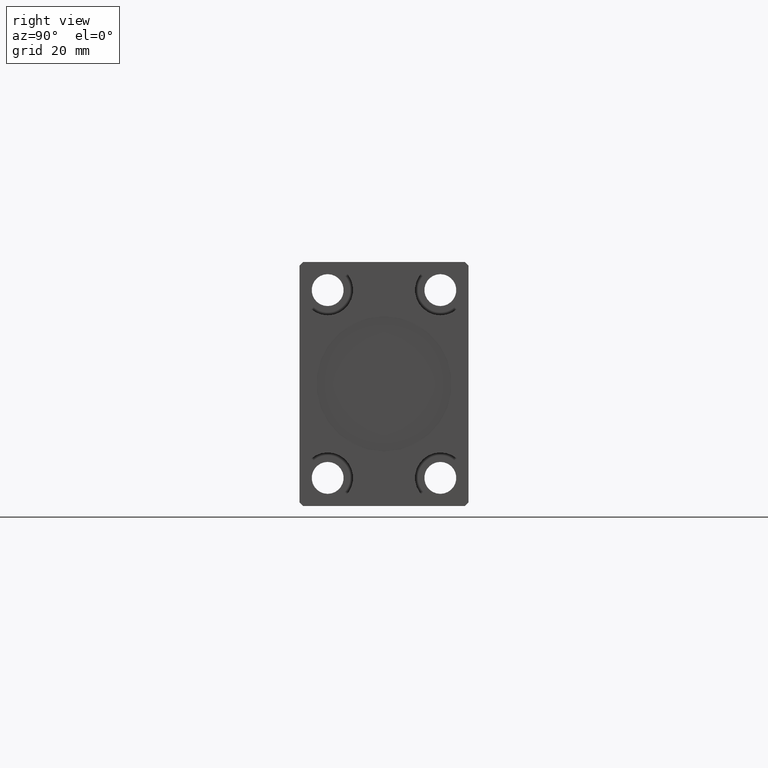
[diagram: clean part render]
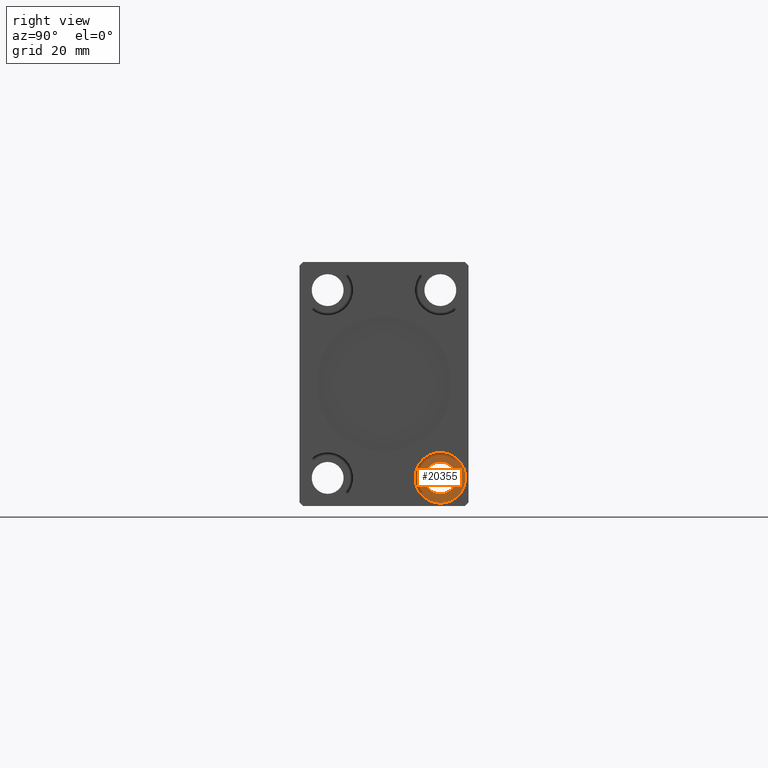
[diagram: same view with one face highlighted and labeled with its STEP entity id]
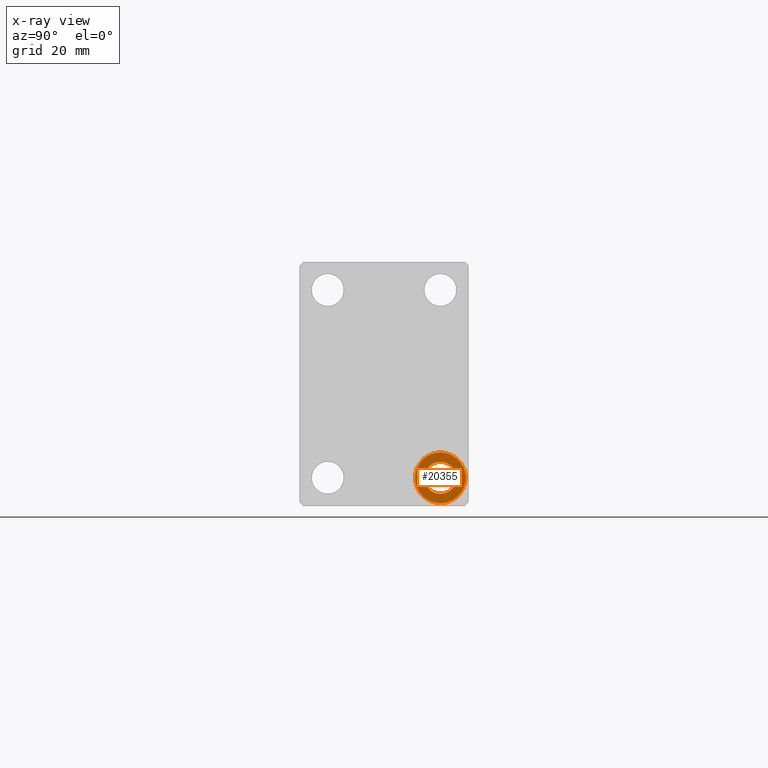
[diagram: x-ray of the same camera — body ghosted, the highlighted face saturated]
A machine part, right view. The second image highlights one B-rep face of the part: STEP entity #20355.
The next image is the same camera in x-ray: the body ghosted, the highlighted face saturated — about 0% of this face is hidden behind the body in this view.
In plain terms, the highlighted planar face has unit normal (1, 0, -0).
Its self-contained STEP definition (entity closure, byte-faithful):
#1227 = DIRECTION ( 'NONE',  ( 1.000000000000000000, 0.000000000000000000, 0.000000000000000000 ) ) ;
#1362 = CARTESIAN_POINT ( 'NONE',  ( 167.6699999999999875, 15.00000000000000000, -25.00000000000000000 ) ) ;
#4154 = DIRECTION ( 'NONE',  ( -1.000000000000000000, -0.000000000000000000, -0.000000000000000000 ) ) ;
#4910 = CIRCLE ( 'NONE', #24135, 4.249999999999996447 ) ;
#5241 = AXIS2_PLACEMENT_3D ( 'NONE', #24219, #10080, #33128 ) ;
#6548 = CARTESIAN_POINT ( 'NONE',  ( 167.6699999999999875, 15.00000000000000000, -25.00000000000000000 ) ) ;
#8087 = VERTEX_POINT ( 'NONE', #37718 ) ;
#8255 = ORIENTED_EDGE ( 'NONE', *, *, #12846, .F. ) ;
#8564 = EDGE_CURVE ( 'NONE', #33361, #32217, #4910, .T. ) ;
#9356 = CIRCLE ( 'NONE', #5241, 6.749999999999992006 ) ;
#9913 = DIRECTION ( 'NONE',  ( 1.000000000000000000, 0.000000000000000000, -0.000000000000000000 ) ) ;
#10080 = DIRECTION ( 'NONE',  ( -1.000000000000000000, -0.000000000000000000, -0.000000000000000000 ) ) ;
#10576 = AXIS2_PLACEMENT_3D ( 'NONE', #39405, #9913, #23456 ) ;
#12499 = CIRCLE ( 'NONE', #15908, 6.749999999999992006 ) ;
#12732 = ORIENTED_EDGE ( 'NONE', *, *, #8564, .F. ) ;
#12846 = EDGE_CURVE ( 'NONE', #8087, #19024, #12499, .T. ) ;
#14721 = DIRECTION ( 'NONE',  ( 0.000000000000000000, 0.000000000000000000, -1.000000000000000000 ) ) ;
#15321 = CARTESIAN_POINT ( 'NONE',  ( 167.6699999999999875, 15.00000000000000000, -20.75000000000000355 ) ) ;
#15908 = AXIS2_PLACEMENT_3D ( 'NONE', #6548, #4154, #16447 ) ;
#16447 = DIRECTION ( 'NONE',  ( 0.000000000000000000, 0.000000000000000000, 1.000000000000000000 ) ) ;
#17509 = ORIENTED_EDGE ( 'NONE', *, *, #27109, .F. ) ;
#19024 = VERTEX_POINT ( 'NONE', #21400 ) ;
#20190 = CARTESIAN_POINT ( 'NONE',  ( 167.6699999999999875, 15.00000000000000000, -25.00000000000000000 ) ) ;
#20355 = ADVANCED_FACE ( 'NONE', ( #33378, #39828 ), #39194, .T. ) ;
#21400 = CARTESIAN_POINT ( 'NONE',  ( 167.6699999999999875, 15.00000000000000000, -18.25000000000001066 ) ) ;
#22406 = AXIS2_PLACEMENT_3D ( 'NONE', #1362, #37334, #14721 ) ;
#23047 = EDGE_LOOP ( 'NONE', ( #12732, #36365 ) ) ;
#23456 = DIRECTION ( 'NONE',  ( 0.000000000000000000, 0.000000000000000000, 1.000000000000000000 ) ) ;
#24135 = AXIS2_PLACEMENT_3D ( 'NONE', #20190, #1227, #26851 ) ;
#24219 = CARTESIAN_POINT ( 'NONE',  ( 167.6699999999999875, 15.00000000000000000, -25.00000000000000000 ) ) ;
#26851 = DIRECTION ( 'NONE',  ( 0.000000000000000000, 0.000000000000000000, -1.000000000000000000 ) ) ;
#27109 = EDGE_CURVE ( 'NONE', #19024, #8087, #9356, .T. ) ;
#28488 = CARTESIAN_POINT ( 'NONE',  ( 167.6699999999999875, 15.00000000000000000, -29.25000000000000000 ) ) ;
#31495 = EDGE_LOOP ( 'NONE', ( #8255, #17509 ) ) ;
#31846 = EDGE_CURVE ( 'NONE', #32217, #33361, #35483, .T. ) ;
#32217 = VERTEX_POINT ( 'NONE', #28488 ) ;
#33128 = DIRECTION ( 'NONE',  ( 0.000000000000000000, 0.000000000000000000, 1.000000000000000000 ) ) ;
#33361 = VERTEX_POINT ( 'NONE', #15321 ) ;
#33378 = FACE_BOUND ( 'NONE', #23047, .T. ) ;
#35483 = CIRCLE ( 'NONE', #22406, 4.249999999999996447 ) ;
#36365 = ORIENTED_EDGE ( 'NONE', *, *, #31846, .F. ) ;
#37334 = DIRECTION ( 'NONE',  ( 1.000000000000000000, 0.000000000000000000, 0.000000000000000000 ) ) ;
#37718 = CARTESIAN_POINT ( 'NONE',  ( 167.6699999999999875, 15.00000000000000000, -31.74999999999999289 ) ) ;
#39194 = PLANE ( 'NONE',  #10576 ) ;
#39405 = CARTESIAN_POINT ( 'NONE',  ( 167.6699999999999875, 15.00000000000000000, -25.00000000000000000 ) ) ;
#39828 = FACE_OUTER_BOUND ( 'NONE', #31495, .T. ) ;